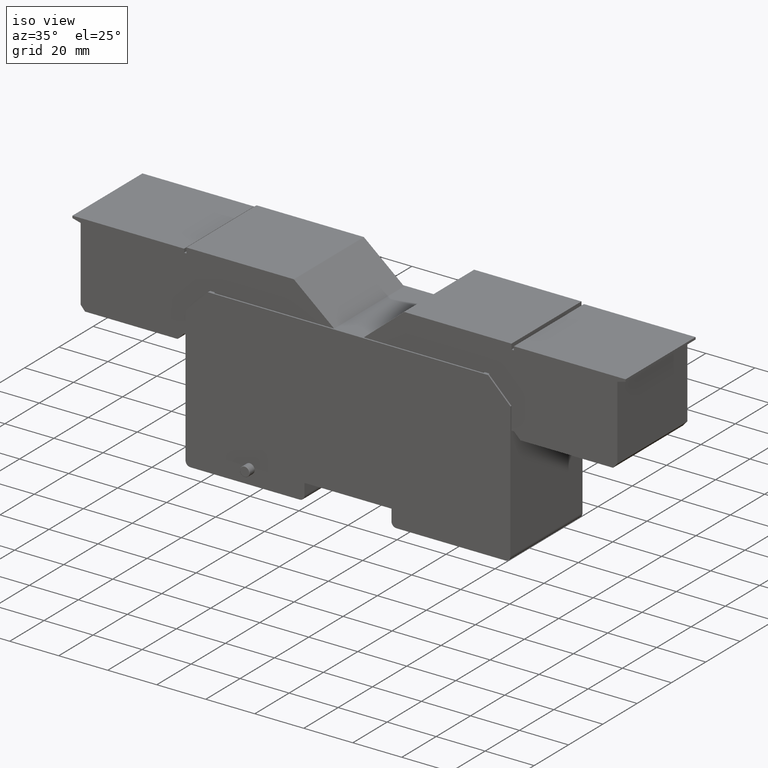
[diagram: clean part render]
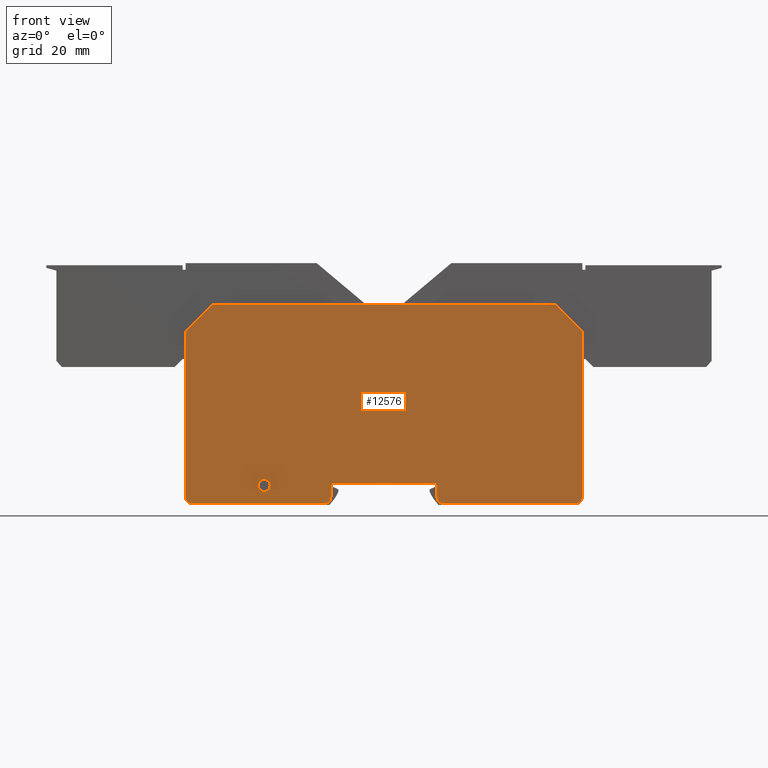
[diagram: tour spotlight — one face highlighted and labeled with its STEP entity id]
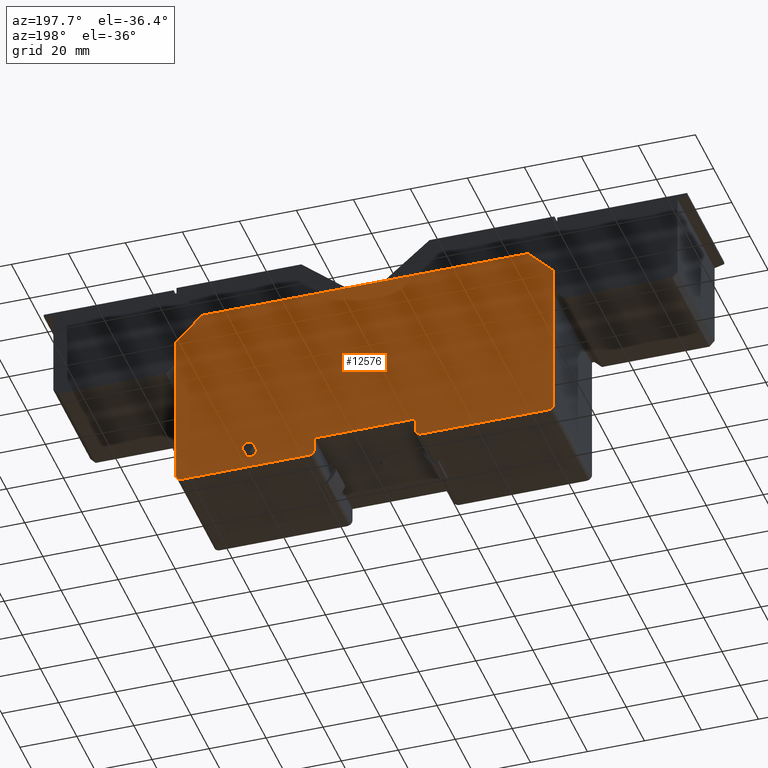
[diagram: tour spotlight — one face highlighted and labeled with its STEP entity id]
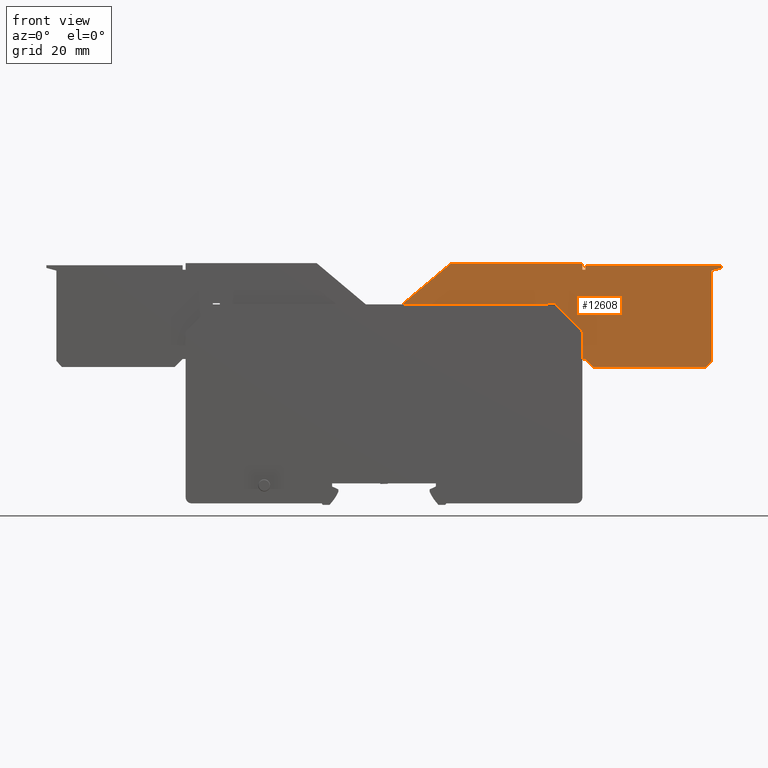
[diagram: tour spotlight — one face highlighted and labeled with its STEP entity id]
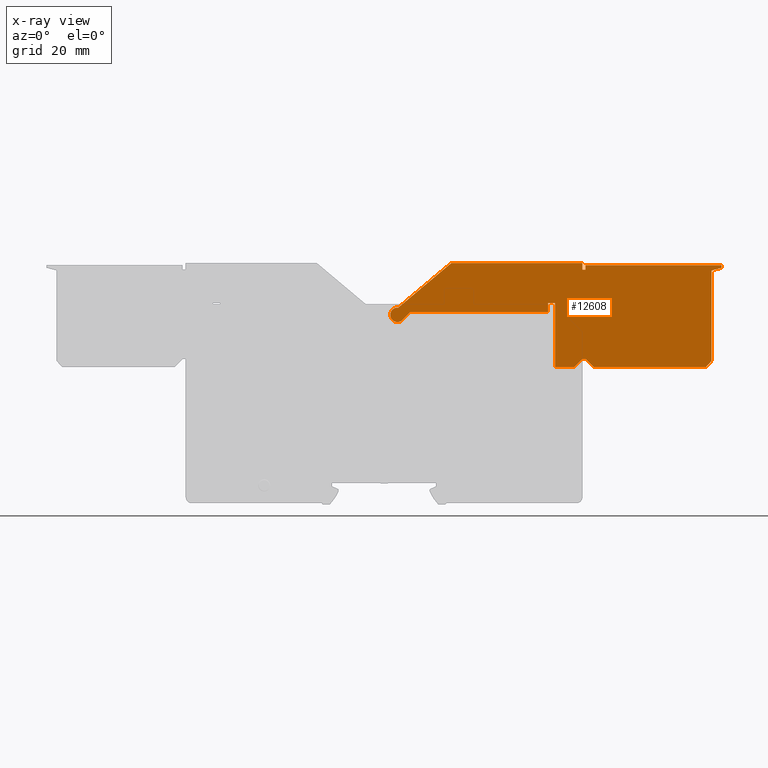
[diagram: x-ray of the same camera — body ghosted, this tour face saturated]
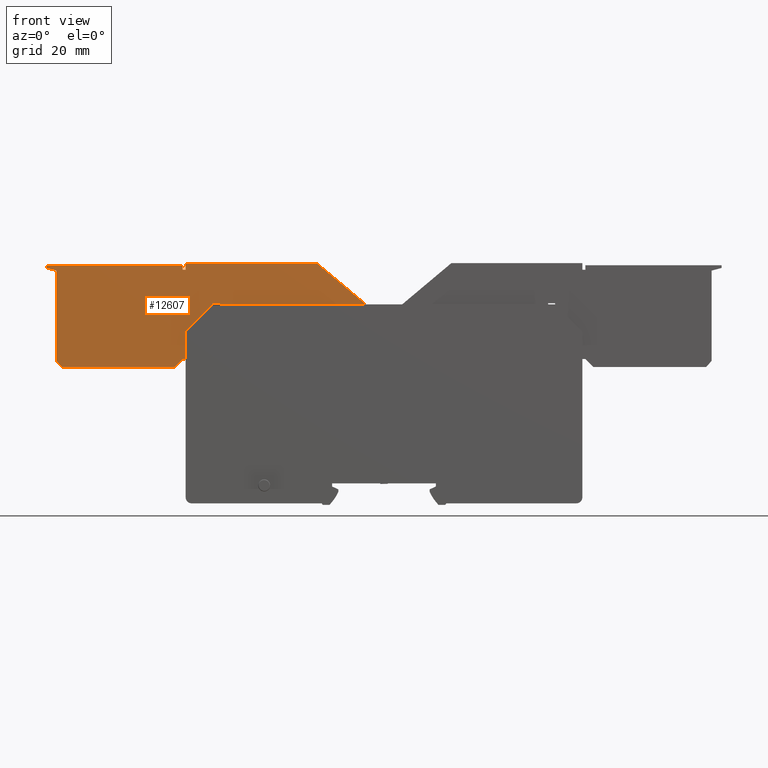
[diagram: tour spotlight — one face highlighted and labeled with its STEP entity id]
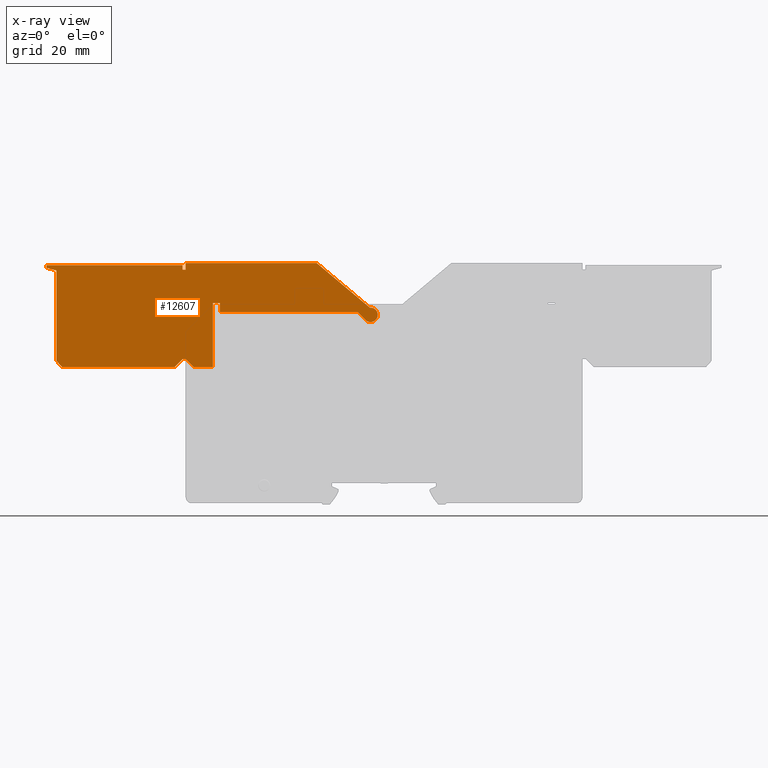
[diagram: x-ray of the same camera — body ghosted, this tour face saturated]
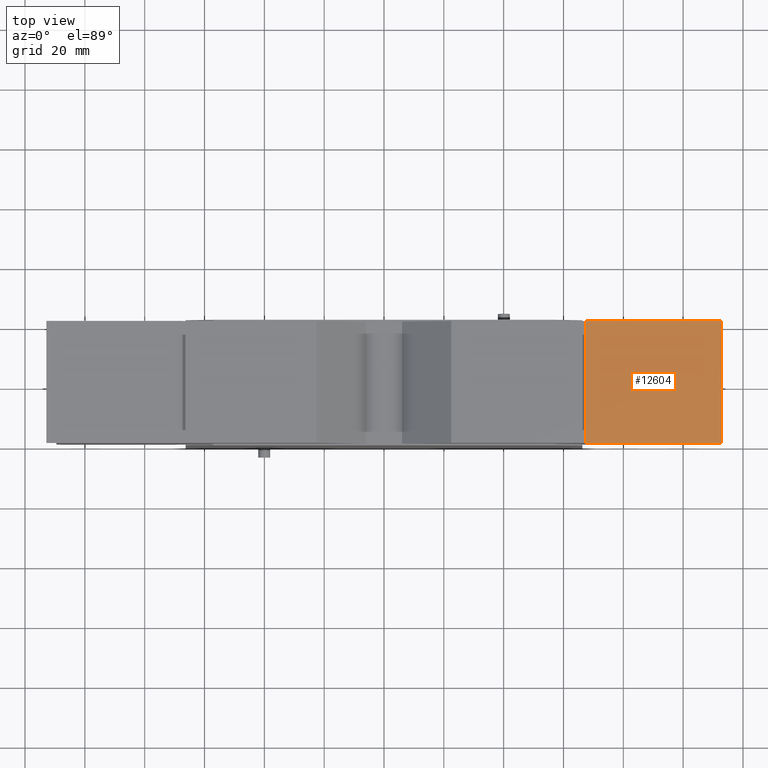
[diagram: tour spotlight — one face highlighted and labeled with its STEP entity id]
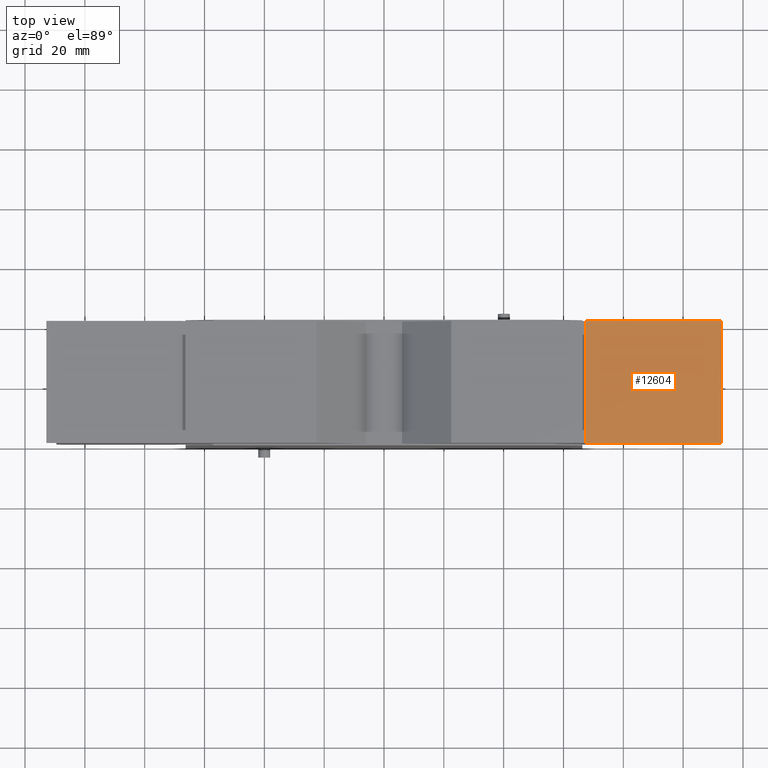
[diagram: tour spotlight — one face highlighted and labeled with its STEP entity id]
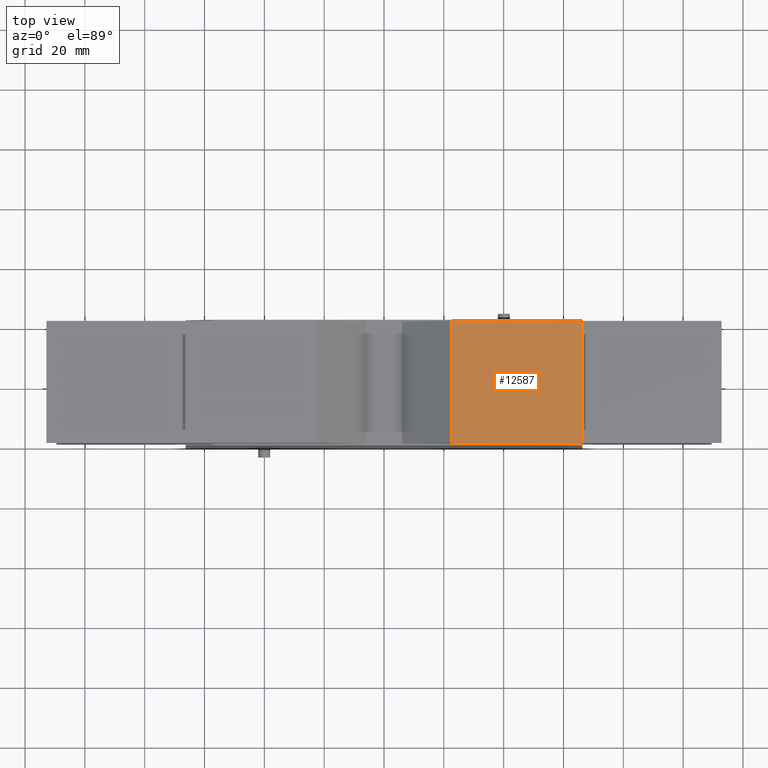
[diagram: tour spotlight — one face highlighted and labeled with its STEP entity id]
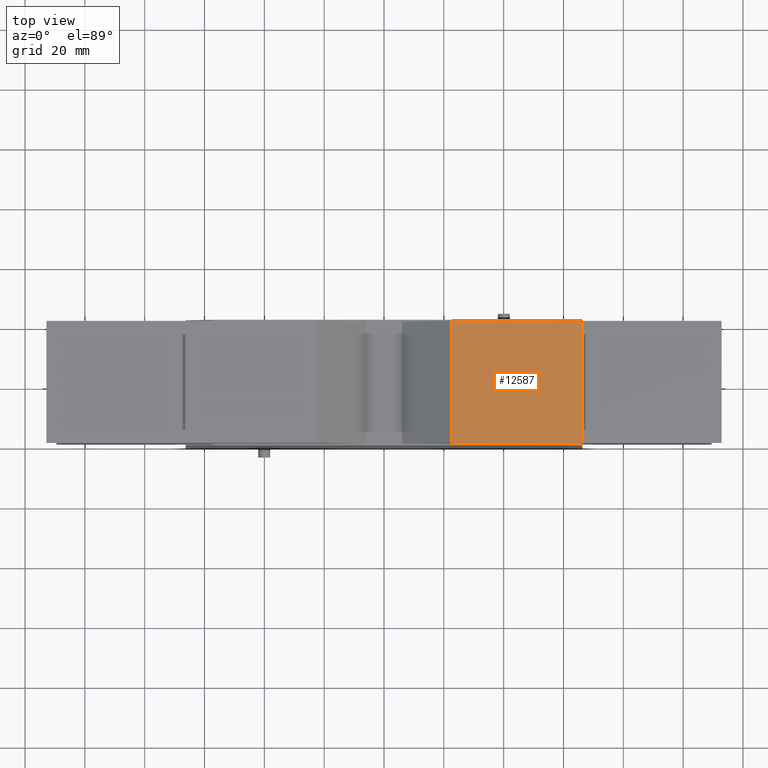
[diagram: tour spotlight — one face highlighted and labeled with its STEP entity id]
A machine part: a face-by-face anatomy tour. The part has 1136 B-rep faces; the first image is the clean iso view, then the 8 largest visible faces are spotlighted one at a time (largest first), each with its STEP entity span.

Face 1 — front view, entity #12576. In plain terms, the highlighted planar face has unit normal (0, -1, 0).
Definition (entity closure, byte-faithful):
#356=LINE('',#19168,#1648);
#360=LINE('',#19183,#1652);
#365=LINE('',#19201,#1657);
#394=LINE('',#19281,#1686);
#395=LINE('',#19283,#1687);
#403=LINE('',#19298,#1695);
#405=LINE('',#19302,#1697);
#407=LINE('',#19306,#1699);
#409=LINE('',#19310,#1701);
#411=LINE('',#19314,#1703);
#1648=VECTOR('',#15522,1000.);
#1652=VECTOR('',#15536,1000.);
#1657=VECTOR('',#15555,1000.);
#1686=VECTOR('',#15616,1000.);
#1687=VECTOR('',#15619,1000.);
#1695=VECTOR('',#15629,1000.);
#1697=VECTOR('',#15633,1000.);
#1699=VECTOR('',#15637,1000.);
#1701=VECTOR('',#15641,1000.);
#1703=VECTOR('',#15645,1000.);
#3447=ORIENTED_EDGE('',*,*,#6913,.T.);
#3448=ORIENTED_EDGE('',*,*,#6946,.T.);
#3449=ORIENTED_EDGE('',*,*,#6902,.T.);
#3450=ORIENTED_EDGE('',*,*,#6905,.T.);
#3451=ORIENTED_EDGE('',*,*,#6890,.T.);
#3452=ORIENTED_EDGE('',*,*,#6896,.T.);
#3453=ORIENTED_EDGE('',*,*,#6899,.T.);
#3454=ORIENTED_EDGE('',*,*,#6945,.T.);
#3455=ORIENTED_EDGE('',*,*,#6909,.T.);
#3456=ORIENTED_EDGE('',*,*,#6954,.T.);
#3457=ORIENTED_EDGE('',*,*,#6962,.T.);
#3458=ORIENTED_EDGE('',*,*,#6960,.T.);
#3459=ORIENTED_EDGE('',*,*,#6958,.T.);
#3460=ORIENTED_EDGE('',*,*,#6956,.T.);
#3461=ORIENTED_EDGE('',*,*,#6907,.F.);
#6890=EDGE_CURVE('',#8775,#8774,#356,.T.);
#6896=EDGE_CURVE('',#8774,#8780,#360,.T.);
#6899=EDGE_CURVE('',#8780,#8782,#10055,.T.);
#6902=EDGE_CURVE('',#8785,#8784,#10057,.T.);
#6905=EDGE_CURVE('',#8784,#8775,#365,.T.);
#6907=EDGE_CURVE('',#8787,#8787,#10059,.T.);
#6909=EDGE_CURVE('',#8790,#8789,#10060,.T.);
#6913=EDGE_CURVE('',#8794,#8793,#10062,.T.);
#6945=EDGE_CURVE('',#8782,#8790,#394,.T.);
#6946=EDGE_CURVE('',#8793,#8785,#395,.T.);
#6954=EDGE_CURVE('',#8789,#8828,#403,.T.);
#6956=EDGE_CURVE('',#8829,#8794,#405,.T.);
#6958=EDGE_CURVE('',#8830,#8829,#407,.T.);
#6960=EDGE_CURVE('',#8831,#8830,#409,.T.);
#6962=EDGE_CURVE('',#8828,#8831,#411,.T.);
#8774=VERTEX_POINT('',#19167);
#8775=VERTEX_POINT('',#19169);
#8780=VERTEX_POINT('',#19182);
#8782=VERTEX_POINT('',#19188);
#8784=VERTEX_POINT('',#19194);
#8785=VERTEX_POINT('',#19196);
#8787=VERTEX_POINT('',#19205);
#8789=VERTEX_POINT('',#19209);
#8790=VERTEX_POINT('',#19211);
#8793=VERTEX_POINT('',#19218);
#8794=VERTEX_POINT('',#19220);
#8828=VERTEX_POINT('',#19299);
#8829=VERTEX_POINT('',#19303);
#8830=VERTEX_POINT('',#19307);
#8831=VERTEX_POINT('',#19311);
#10055=CIRCLE('',#14337,2.);
#10057=CIRCLE('',#14340,2.);
#10059=CIRCLE('',#14344,2.);
#10060=CIRCLE('',#14346,2.);
#10062=CIRCLE('',#14349,2.);
#10501=EDGE_LOOP('',(#3447,#3448,#3449,#3450,#3451,#3452,#3453,#3454,#3455,
#3456,#3457,#3458,#3459,#3460));
#10502=EDGE_LOOP('',(#3461));
#11293=FACE_BOUND('',#10501,.T.);
#11294=FACE_BOUND('',#10502,.T.);
#12024=PLANE('',#14450);
#12576=ADVANCED_FACE('',(#11293,#11294),#12024,.T.);
#14337=AXIS2_PLACEMENT_3D('',#19189,#15541,#15542);
#14340=AXIS2_PLACEMENT_3D('',#19195,#15548,#15549);
#14344=AXIS2_PLACEMENT_3D('',#19204,#15559,#15560);
#14346=AXIS2_PLACEMENT_3D('',#19210,#15564,#15565);
#14349=AXIS2_PLACEMENT_3D('',#19219,#15572,#15573);
#14450=AXIS2_PLACEMENT_3D('',#19532,#15886,#15887);
#15522=DIRECTION('',(1.,0.,0.));
#15536=DIRECTION('',(1.47636040508663E-15,0.,-1.));
#15541=DIRECTION('',(0.,-1.,0.));
#15542=DIRECTION('',(1.,0.,0.));
#15548=DIRECTION('',(0.,-1.,0.));
#15549=DIRECTION('',(-1.,0.,0.));
#15555=DIRECTION('',(0.,0.,1.));
#15559=DIRECTION('',(0.,-1.,0.));
#15560=DIRECTION('',(0.,0.,-1.));
#15564=DIRECTION('',(0.,-1.,0.));
#15565=DIRECTION('',(0.,0.,-1.));
#15572=DIRECTION('',(0.,-1.,0.));
#15573=DIRECTION('',(0.,0.,-1.));
#15616=DIRECTION('',(1.,0.,-7.78775971257826E-17));
#15619=DIRECTION('',(1.,0.,-2.33632791377348E-16));
#15629=DIRECTION('',(5.01184102846303E-16,0.,1.));
#15633=DIRECTION('',(2.50592051423151E-16,0.,-1.));
#15637=DIRECTION('',(-0.7071067811866,0.,-0.707106781186495));
#15641=DIRECTION('',(-1.,0.,0.));
#15645=DIRECTION('',(-0.707106781186601,0.,0.707106781186495));
#15886=DIRECTION('',(0.,-1.,0.));
#15887=DIRECTION('',(0.,0.,-1.));
#19167=CARTESIAN_POINT('',(17.75,0.,-22.9900000000006));
#19168=CARTESIAN_POINT('',(-17.75,0.,-22.9900000000006));
#19169=CARTESIAN_POINT('',(-17.75,0.,-22.9900000000006));
#19182=CARTESIAN_POINT('',(17.75,0.,-27.6900000000007));
#19183=CARTESIAN_POINT('',(17.75,0.,-22.9900000000006));
#19188=CARTESIAN_POINT('',(19.75,0.,-29.6900000000007));
#19189=CARTESIAN_POINT('',(19.75,0.,-27.6900000000007));
#19194=CARTESIAN_POINT('',(-17.75,0.,-27.6900000000007));
#19195=CARTESIAN_POINT('',(-19.75,0.,-27.6900000000007));
#19196=CARTESIAN_POINT('',(-19.75,0.,-29.6900000000007));
#19201=CARTESIAN_POINT('',(-17.75,0.,-22.9900000000006));
#19204=CARTESIAN_POINT('',(-40.05,0.,-23.6900000000007));
#19205=CARTESIAN_POINT('',(-40.05,0.,-25.6900000000007));
#19209=CARTESIAN_POINT('',(66.3,0.,-27.6900000000007));
#19210=CARTESIAN_POINT('',(64.3,0.,-27.6900000000007));
#19211=CARTESIAN_POINT('',(64.3,0.,-29.6900000000007));
#19218=CARTESIAN_POINT('',(-64.3,0.,-29.6900000000007));
#19219=CARTESIAN_POINT('',(-64.3,0.,-27.6900000000007));
#19220=CARTESIAN_POINT('',(-66.3,0.,-27.6900000000007));
#19281=CARTESIAN_POINT('',(19.75,0.,-29.6900000000007));
#19283=CARTESIAN_POINT('',(-64.3,0.,-29.6900000000007));
#19298=CARTESIAN_POINT('',(66.3,0.,27.6900000000007));
#19299=CARTESIAN_POINT('',(66.3,0.,27.6900000000007));
#19302=CARTESIAN_POINT('',(-66.3,0.,-27.6900000000007));
#19303=CARTESIAN_POINT('',(-66.3,0.,27.6900000000007));
#19306=CARTESIAN_POINT('',(-57.1799999999999,0.,36.8099999999994));
#19307=CARTESIAN_POINT('',(-57.1799999999999,0.,36.8099999999994));
#19310=CARTESIAN_POINT('',(-57.18,0.,36.8099999999993));
#19311=CARTESIAN_POINT('',(57.18,0.,36.8099999999993));
#19314=CARTESIAN_POINT('',(66.3,0.,27.6900000000007));
#19532=CARTESIAN_POINT('',(-64.3,0.,-27.6900000000007));

Face 2 — auxiliary view, entity #12576. In plain terms, the highlighted planar face has unit normal (0, 1, 0).
Definition (entity closure, byte-faithful):
#356=LINE('',#19168,#1648);
#360=LINE('',#19183,#1652);
#365=LINE('',#19201,#1657);
#394=LINE('',#19281,#1686);
#395=LINE('',#19283,#1687);
#403=LINE('',#19298,#1695);
#405=LINE('',#19302,#1697);
#407=LINE('',#19306,#1699);
#409=LINE('',#19310,#1701);
#411=LINE('',#19314,#1703);
#1648=VECTOR('',#15522,1000.);
#1652=VECTOR('',#15536,1000.);
#1657=VECTOR('',#15555,1000.);
#1686=VECTOR('',#15616,1000.);
#1687=VECTOR('',#15619,1000.);
#1695=VECTOR('',#15629,1000.);
#1697=VECTOR('',#15633,1000.);
#1699=VECTOR('',#15637,1000.);
#1701=VECTOR('',#15641,1000.);
#1703=VECTOR('',#15645,1000.);
#3447=ORIENTED_EDGE('',*,*,#6913,.T.);
#3448=ORIENTED_EDGE('',*,*,#6946,.T.);
#3449=ORIENTED_EDGE('',*,*,#6902,.T.);
#3450=ORIENTED_EDGE('',*,*,#6905,.T.);
#3451=ORIENTED_EDGE('',*,*,#6890,.T.);
#3452=ORIENTED_EDGE('',*,*,#6896,.T.);
#3453=ORIENTED_EDGE('',*,*,#6899,.T.);
#3454=ORIENTED_EDGE('',*,*,#6945,.T.);
#3455=ORIENTED_EDGE('',*,*,#6909,.T.);
#3456=ORIENTED_EDGE('',*,*,#6954,.T.);
#3457=ORIENTED_EDGE('',*,*,#6962,.T.);
#3458=ORIENTED_EDGE('',*,*,#6960,.T.);
#3459=ORIENTED_EDGE('',*,*,#6958,.T.);
#3460=ORIENTED_EDGE('',*,*,#6956,.T.);
#3461=ORIENTED_EDGE('',*,*,#6907,.F.);
#6890=EDGE_CURVE('',#8775,#8774,#356,.T.);
#6896=EDGE_CURVE('',#8774,#8780,#360,.T.);
#6899=EDGE_CURVE('',#8780,#8782,#10055,.T.);
#6902=EDGE_CURVE('',#8785,#8784,#10057,.T.);
#6905=EDGE_CURVE('',#8784,#8775,#365,.T.);
#6907=EDGE_CURVE('',#8787,#8787,#10059,.T.);
#6909=EDGE_CURVE('',#8790,#8789,#10060,.T.);
#6913=EDGE_CURVE('',#8794,#8793,#10062,.T.);
#6945=EDGE_CURVE('',#8782,#8790,#394,.T.);
#6946=EDGE_CURVE('',#8793,#8785,#395,.T.);
#6954=EDGE_CURVE('',#8789,#8828,#403,.T.);
#6956=EDGE_CURVE('',#8829,#8794,#405,.T.);
#6958=EDGE_CURVE('',#8830,#8829,#407,.T.);
#6960=EDGE_CURVE('',#8831,#8830,#409,.T.);
#6962=EDGE_CURVE('',#8828,#8831,#411,.T.);
#8774=VERTEX_POINT('',#19167);
#8775=VERTEX_POINT('',#19169);
#8780=VERTEX_POINT('',#19182);
#8782=VERTEX_POINT('',#19188);
#8784=VERTEX_POINT('',#19194);
#8785=VERTEX_POINT('',#19196);
#8787=VERTEX_POINT('',#19205);
#8789=VERTEX_POINT('',#19209);
#8790=VERTEX_POINT('',#19211);
#8793=VERTEX_POINT('',#19218);
#8794=VERTEX_POINT('',#19220);
#8828=VERTEX_POINT('',#19299);
#8829=VERTEX_POINT('',#19303);
#8830=VERTEX_POINT('',#19307);
#8831=VERTEX_POINT('',#19311);
#10055=CIRCLE('',#14337,2.);
#10057=CIRCLE('',#14340,2.);
#10059=CIRCLE('',#14344,2.);
#10060=CIRCLE('',#14346,2.);
#10062=CIRCLE('',#14349,2.);
#10501=EDGE_LOOP('',(#3447,#3448,#3449,#3450,#3451,#3452,#3453,#3454,#3455,
#3456,#3457,#3458,#3459,#3460));
#10502=EDGE_LOOP('',(#3461));
#11293=FACE_BOUND('',#10501,.T.);
#11294=FACE_BOUND('',#10502,.T.);
#12024=PLANE('',#14450);
#12576=ADVANCED_FACE('',(#11293,#11294),#12024,.T.);
#14337=AXIS2_PLACEMENT_3D('',#19189,#15541,#15542);
#14340=AXIS2_PLACEMENT_3D('',#19195,#15548,#15549);
#14344=AXIS2_PLACEMENT_3D('',#19204,#15559,#15560);
#14346=AXIS2_PLACEMENT_3D('',#19210,#15564,#15565);
#14349=AXIS2_PLACEMENT_3D('',#19219,#15572,#15573);
#14450=AXIS2_PLACEMENT_3D('',#19532,#15886,#15887);
#15522=DIRECTION('',(1.,0.,0.));
#15536=DIRECTION('',(1.47636040508663E-15,0.,-1.));
#15541=DIRECTION('',(0.,-1.,0.));
#15542=DIRECTION('',(1.,0.,0.));
#15548=DIRECTION('',(0.,-1.,0.));
#15549=DIRECTION('',(-1.,0.,0.));
#15555=DIRECTION('',(0.,0.,1.));
#15559=DIRECTION('',(0.,-1.,0.));
#15560=DIRECTION('',(0.,0.,-1.));
#15564=DIRECTION('',(0.,-1.,0.));
#15565=DIRECTION('',(0.,0.,-1.));
#15572=DIRECTION('',(0.,-1.,0.));
#15573=DIRECTION('',(0.,0.,-1.));
#15616=DIRECTION('',(1.,0.,-7.78775971257826E-17));
#15619=DIRECTION('',(1.,0.,-2.33632791377348E-16));
#15629=DIRECTION('',(5.01184102846303E-16,0.,1.));
#15633=DIRECTION('',(2.50592051423151E-16,0.,-1.));
#15637=DIRECTION('',(-0.7071067811866,0.,-0.707106781186495));
#15641=DIRECTION('',(-1.,0.,0.));
#15645=DIRECTION('',(-0.707106781186601,0.,0.707106781186495));
#15886=DIRECTION('',(0.,-1.,0.));
#15887=DIRECTION('',(0.,0.,-1.));
#19167=CARTESIAN_POINT('',(17.75,0.,-22.9900000000006));
#19168=CARTESIAN_POINT('',(-17.75,0.,-22.9900000000006));
#19169=CARTESIAN_POINT('',(-17.75,0.,-22.9900000000006));
#19182=CARTESIAN_POINT('',(17.75,0.,-27.6900000000007));
#19183=CARTESIAN_POINT('',(17.75,0.,-22.9900000000006));
#19188=CARTESIAN_POINT('',(19.75,0.,-29.6900000000007));
#19189=CARTESIAN_POINT('',(19.75,0.,-27.6900000000007));
#19194=CARTESIAN_POINT('',(-17.75,0.,-27.6900000000007));
#19195=CARTESIAN_POINT('',(-19.75,0.,-27.6900000000007));
#19196=CARTESIAN_POINT('',(-19.75,0.,-29.6900000000007));
#19201=CARTESIAN_POINT('',(-17.75,0.,-22.9900000000006));
#19204=CARTESIAN_POINT('',(-40.05,0.,-23.6900000000007));
#19205=CARTESIAN_POINT('',(-40.05,0.,-25.6900000000007));
#19209=CARTESIAN_POINT('',(66.3,0.,-27.6900000000007));
#19210=CARTESIAN_POINT('',(64.3,0.,-27.6900000000007));
#19211=CARTESIAN_POINT('',(64.3,0.,-29.6900000000007));
#19218=CARTESIAN_POINT('',(-64.3,0.,-29.6900000000007));
#19219=CARTESIAN_POINT('',(-64.3,0.,-27.6900000000007));
#19220=CARTESIAN_POINT('',(-66.3,0.,-27.6900000000007));
#19281=CARTESIAN_POINT('',(19.75,0.,-29.6900000000007));
#19283=CARTESIAN_POINT('',(-64.3,0.,-29.6900000000007));
#19298=CARTESIAN_POINT('',(66.3,0.,27.6900000000007));
#19299=CARTESIAN_POINT('',(66.3,0.,27.6900000000007));
#19302=CARTESIAN_POINT('',(-66.3,0.,-27.6900000000007));
#19303=CARTESIAN_POINT('',(-66.3,0.,27.6900000000007));
#19306=CARTESIAN_POINT('',(-57.1799999999999,0.,36.8099999999994));
#19307=CARTESIAN_POINT('',(-57.1799999999999,0.,36.8099999999994));
#19310=CARTESIAN_POINT('',(-57.18,0.,36.8099999999993));
#19311=CARTESIAN_POINT('',(57.18,0.,36.8099999999993));
#19314=CARTESIAN_POINT('',(66.3,0.,27.6900000000007));
#19532=CARTESIAN_POINT('',(-64.3,0.,-27.6900000000007));

Face 3 — front view, entity #12608. An x-ray twin of the same camera follows (body ghosted, this face saturated) — the face is partly hidden behind the body. In plain terms, the highlighted planar face has unit normal (-0, -1, 0).
Definition (entity closure, byte-faithful):
#482=LINE('',#19556,#1774);
#486=LINE('',#19565,#1778);
#489=LINE('',#19571,#1781);
#493=LINE('',#19583,#1785);
#496=LINE('',#19589,#1788);
#499=LINE('',#19595,#1791);
#502=LINE('',#19601,#1794);
#505=LINE('',#19607,#1797);
#508=LINE('',#19613,#1800);
#511=LINE('',#19619,#1803);
#514=LINE('',#19625,#1806);
#517=LINE('',#19631,#1809);
#520=LINE('',#19637,#1812);
#523=LINE('',#19643,#1815);
#526=LINE('',#19649,#1818);
#529=LINE('',#19655,#1821);
#532=LINE('',#19661,#1824);
#535=LINE('',#19667,#1827);
#538=LINE('',#19673,#1830);
#541=LINE('',#19679,#1833);
#1774=VECTOR('',#15922,1000.);
#1778=VECTOR('',#15928,1000.);
#1781=VECTOR('',#15933,1000.);
#1785=VECTOR('',#15945,1000.);
#1788=VECTOR('',#15950,1000.);
#1791=VECTOR('',#15955,1000.);
#1794=VECTOR('',#15960,1000.);
#1797=VECTOR('',#15965,1000.);
#1800=VECTOR('',#15970,1000.);
#1803=VECTOR('',#15975,1000.);
#1806=VECTOR('',#15980,1000.);
#1809=VECTOR('',#15985,1000.);
#1812=VECTOR('',#15990,1000.);
#1815=VECTOR('',#15995,1000.);
#1818=VECTOR('',#16000,1000.);
#1821=VECTOR('',#16005,1000.);
#1824=VECTOR('',#16010,1000.);
#1827=VECTOR('',#16015,1000.);
#1830=VECTOR('',#16020,1000.);
#1833=VECTOR('',#16025,1000.);
#3579=ORIENTED_EDGE('',*,*,#7063,.T.);
#3580=ORIENTED_EDGE('',*,*,#7067,.T.);
#3581=ORIENTED_EDGE('',*,*,#7070,.T.);
#3582=ORIENTED_EDGE('',*,*,#7073,.T.);
#3583=ORIENTED_EDGE('',*,*,#7076,.T.);
#3584=ORIENTED_EDGE('',*,*,#7079,.T.);
#3585=ORIENTED_EDGE('',*,*,#7082,.T.);
#3586=ORIENTED_EDGE('',*,*,#7085,.T.);
#3587=ORIENTED_EDGE('',*,*,#7088,.T.);
#3588=ORIENTED_EDGE('',*,*,#7091,.T.);
#3589=ORIENTED_EDGE('',*,*,#7094,.T.);
#3590=ORIENTED_EDGE('',*,*,#7097,.T.);
#3591=ORIENTED_EDGE('',*,*,#7100,.T.);
#3592=ORIENTED_EDGE('',*,*,#7103,.T.);
#3593=ORIENTED_EDGE('',*,*,#7106,.T.);
#3594=ORIENTED_EDGE('',*,*,#7109,.T.);
#3595=ORIENTED_EDGE('',*,*,#7112,.T.);
#3596=ORIENTED_EDGE('',*,*,#7115,.T.);
#3597=ORIENTED_EDGE('',*,*,#7118,.T.);
#3598=ORIENTED_EDGE('',*,*,#7121,.T.);
#3599=ORIENTED_EDGE('',*,*,#7124,.T.);
#7063=EDGE_CURVE('',#8900,#8901,#482,.T.);
#7067=EDGE_CURVE('',#8901,#8904,#486,.T.);
#7070=EDGE_CURVE('',#8904,#8906,#489,.T.);
#7073=EDGE_CURVE('',#8906,#8908,#10100,.T.);
#7076=EDGE_CURVE('',#8908,#8910,#493,.T.);
#7079=EDGE_CURVE('',#8910,#8912,#496,.T.);
#7082=EDGE_CURVE('',#8912,#8914,#499,.T.);
#7085=EDGE_CURVE('',#8914,#8916,#502,.T.);
#7088=EDGE_CURVE('',#8916,#8918,#505,.T.);
#7091=EDGE_CURVE('',#8918,#8920,#508,.T.);
#7094=EDGE_CURVE('',#8920,#8922,#511,.T.);
#7097=EDGE_CURVE('',#8922,#8924,#514,.T.);
#7100=EDGE_CURVE('',#8924,#8926,#517,.T.);
#7103=EDGE_CURVE('',#8926,#8928,#520,.T.);
#7106=EDGE_CURVE('',#8928,#8930,#523,.T.);
#7109=EDGE_CURVE('',#8930,#8932,#526,.T.);
#7112=EDGE_CURVE('',#8932,#8934,#529,.T.);
#7115=EDGE_CURVE('',#8934,#8936,#532,.T.);
#7118=EDGE_CURVE('',#8936,#8938,#535,.T.);
#7121=EDGE_CURVE('',#8938,#8940,#538,.T.);
#7124=EDGE_CURVE('',#8940,#8900,#541,.T.);
#8900=VERTEX_POINT('',#19557);
#8901=VERTEX_POINT('',#19558);
#8904=VERTEX_POINT('',#19566);
#8906=VERTEX_POINT('',#19572);
#8908=VERTEX_POINT('',#19578);
#8910=VERTEX_POINT('',#19584);
#8912=VERTEX_POINT('',#19590);
#8914=VERTEX_POINT('',#19596);
#8916=VERTEX_POINT('',#19602);
#8918=VERTEX_POINT('',#19608);
#8920=VERTEX_POINT('',#19614);
#8922=VERTEX_POINT('',#19620);
#8924=VERTEX_POINT('',#19626);
#8926=VERTEX_POINT('',#19632);
#8928=VERTEX_POINT('',#19638);
#8930=VERTEX_POINT('',#19644);
#8932=VERTEX_POINT('',#19650);
#8934=VERTEX_POINT('',#19656);
#8936=VERTEX_POINT('',#19662);
#8938=VERTEX_POINT('',#19668);
#8940=VERTEX_POINT('',#19674);
#10100=CIRCLE('',#14471,2.41911089923885);
#10537=EDGE_LOOP('',(#3579,#3580,#3581,#3582,#3583,#3584,#3585,#3586,#3587,
#3588,#3589,#3590,#3591,#3592,#3593,#3594,#3595,#3596,#3597,#3598,#3599));
#11329=FACE_BOUND('',#10537,.T.);
#12052=PLANE('',#14491);
#12608=ADVANCED_FACE('',(#11329),#12052,.T.);
#14471=AXIS2_PLACEMENT_3D('',#19577,#15938,#15939);
#14491=AXIS2_PLACEMENT_3D('',#19682,#16029,#16030);
#15922=DIRECTION('',(0.,0.,1.));
#15928=DIRECTION('',(-1.,0.,-1.5842672720808E-16));
#15933=DIRECTION('',(-0.766044443118978,0.,-0.642787609686539));
#15938=DIRECTION('',(0.,-1.,0.));
#15939=DIRECTION('',(1.,0.,0.));
#15945=DIRECTION('',(0.696896255024751,0.,0.717171952695082));
#15950=DIRECTION('',(1.,0.,-1.5050925495941E-16));
#15955=DIRECTION('',(0.,0.,1.));
#15960=DIRECTION('',(1.,0.,0.));
#15965=DIRECTION('',(0.,0.,-1.));
#15970=DIRECTION('',(1.,0.,0.));
#15975=DIRECTION('',(0.709099554956058,0.,0.705108375472254));
#15980=DIRECTION('',(1.,0.,0.));
#15985=DIRECTION('',(0.709099554956058,0.,-0.705108375472254));
#15990=DIRECTION('',(1.,0.,1.838117590439E-16));
#15995=DIRECTION('',(0.662620048215736,0.,0.748955720789004));
#16000=DIRECTION('',(0.,0.,1.));
#16005=DIRECTION('',(0.965925826289068,0.,0.25881904510252));
#16010=DIRECTION('',(0.,0.,1.));
#16015=DIRECTION('',(-1.,0.,0.));
#16020=DIRECTION('',(0.,0.,-1.));
#16025=DIRECTION('',(-1.,0.,0.));
#16029=DIRECTION('',(0.,-1.,0.));
#16030=DIRECTION('',(0.,0.,-1.));
#19556=CARTESIAN_POINT('',(66.3000000000011,0.6,48.4099999999993));
#19557=CARTESIAN_POINT('',(66.3000000000011,0.6,48.4099999999993));
#19558=CARTESIAN_POINT('',(66.3000000000011,0.6,50.6099999999993));
#19565=CARTESIAN_POINT('',(66.3000000000011,0.6,50.6099999999993));
#19566=CARTESIAN_POINT('',(22.5012418851939,0.6,50.6099999999993));
#19571=CARTESIAN_POINT('',(4.75124188519389,0.6,35.7159815466026));
#19572=CARTESIAN_POINT('',(4.75124188519389,0.6,35.7159815466026));
#19577=CARTESIAN_POINT('',(4.49954695035296,0.6,33.3100000000001));
#19578=CARTESIAN_POINT('',(6.23446543774604,0.6,31.624130673831));
#19583=CARTESIAN_POINT('',(6.23446543774604,0.6,31.624130673831));
#19584=CARTESIAN_POINT('',(8.74722774337997,0.6,34.2099999999993));
#19589=CARTESIAN_POINT('',(8.74722774337997,0.6,34.2099999999993));
#19590=CARTESIAN_POINT('',(54.85,0.6,34.2099999999993));
#19595=CARTESIAN_POINT('',(54.85,0.6,34.2099999999993));
#19596=CARTESIAN_POINT('',(54.85,0.6,37.2099999999993));
#19601=CARTESIAN_POINT('',(54.85,0.6,37.2099999999993));
#19602=CARTESIAN_POINT('',(57.2,0.6,37.2099999999993));
#19607=CARTESIAN_POINT('',(57.2,0.6,37.2099999999993));
#19608=CARTESIAN_POINT('',(57.2,0.6,15.9099999999993));
#19613=CARTESIAN_POINT('',(57.2,0.6,15.9099999999993));
#19614=CARTESIAN_POINT('',(63.635,0.6,15.9099999999993));
#19619=CARTESIAN_POINT('',(63.635,0.6,15.9099999999993));
#19620=CARTESIAN_POINT('',(66.3,0.6,18.5599999999993));
#19625=CARTESIAN_POINT('',(67.3,0.6,18.5599999999993));
#19626=CARTESIAN_POINT('',(67.3,0.6,18.5599999999993));
#19631=CARTESIAN_POINT('',(67.3,0.6,18.5599999999993));
#19632=CARTESIAN_POINT('',(69.965,0.6,15.9099999999993));
#19637=CARTESIAN_POINT('',(69.965,0.6,15.9099999999993));
#19638=CARTESIAN_POINT('',(107.715,0.6,15.9099999999993));
#19643=CARTESIAN_POINT('',(107.715,0.6,15.9099999999993));
#19644=CARTESIAN_POINT('',(109.5,0.6,17.9275754796551));
#19649=CARTESIAN_POINT('',(109.5,0.6,17.9275754796551));
#19650=CARTESIAN_POINT('',(109.5,0.6,48.1099999999993));
#19655=CARTESIAN_POINT('',(109.5,0.6,48.1099999999993));
#19656=CARTESIAN_POINT('',(112.858845726812,0.6,49.0099999999993));
#19661=CARTESIAN_POINT('',(112.858845726812,0.6,49.0099999999993));
#19662=CARTESIAN_POINT('',(112.858845726812,0.6,49.9099999999993));
#19667=CARTESIAN_POINT('',(112.858845726812,0.6,49.9099999999993));
#19668=CARTESIAN_POINT('',(67.3,0.6,49.9099999999993));
#19673=CARTESIAN_POINT('',(67.3,0.6,49.9099999999993));
#19674=CARTESIAN_POINT('',(67.3,0.6,48.4099999999993));
#19679=CARTESIAN_POINT('',(67.3,0.6,48.4099999999993));
#19682=CARTESIAN_POINT('',(4.49954695035296,0.6,33.3100000000001));

Face 4 — front view, entity #12607. An x-ray twin of the same camera follows (body ghosted, this face saturated) — the face is partly hidden behind the body. In plain terms, the highlighted planar face has unit normal (-0, 1, -0).
Definition (entity closure, byte-faithful):
#484=LINE('',#19561,#1776);
#487=LINE('',#19567,#1779);
#490=LINE('',#19573,#1782);
#494=LINE('',#19585,#1786);
#497=LINE('',#19591,#1789);
#500=LINE('',#19597,#1792);
#503=LINE('',#19603,#1795);
#506=LINE('',#19609,#1798);
#509=LINE('',#19615,#1801);
#512=LINE('',#19621,#1804);
#515=LINE('',#19627,#1807);
#518=LINE('',#19633,#1810);
#521=LINE('',#19639,#1813);
#524=LINE('',#19645,#1816);
#527=LINE('',#19651,#1819);
#530=LINE('',#19657,#1822);
#533=LINE('',#19663,#1825);
#536=LINE('',#19669,#1828);
#539=LINE('',#19675,#1831);
#542=LINE('',#19680,#1834);
#1776=VECTOR('',#15924,1000.);
#1779=VECTOR('',#15929,1000.);
#1782=VECTOR('',#15934,1000.);
#1786=VECTOR('',#15946,1000.);
#1789=VECTOR('',#15951,1000.);
#1792=VECTOR('',#15956,1000.);
#1795=VECTOR('',#15961,1000.);
#1798=VECTOR('',#15966,1000.);
#1801=VECTOR('',#15971,1000.);
#1804=VECTOR('',#15976,1000.);
#1807=VECTOR('',#15981,1000.);
#1810=VECTOR('',#15986,1000.);
#1813=VECTOR('',#15991,1000.);
#1816=VECTOR('',#15996,1000.);
#1819=VECTOR('',#16001,1000.);
#1822=VECTOR('',#16006,1000.);
#1825=VECTOR('',#16011,1000.);
#1828=VECTOR('',#16016,1000.);
#1831=VECTOR('',#16021,1000.);
#1834=VECTOR('',#16026,1000.);
#3558=ORIENTED_EDGE('',*,*,#7065,.F.);
#3559=ORIENTED_EDGE('',*,*,#7125,.F.);
#3560=ORIENTED_EDGE('',*,*,#7122,.F.);
#3561=ORIENTED_EDGE('',*,*,#7119,.F.);
#3562=ORIENTED_EDGE('',*,*,#7116,.F.);
#3563=ORIENTED_EDGE('',*,*,#7113,.F.);
#3564=ORIENTED_EDGE('',*,*,#7110,.F.);
#3565=ORIENTED_EDGE('',*,*,#7107,.F.);
#3566=ORIENTED_EDGE('',*,*,#7104,.F.);
#3567=ORIENTED_EDGE('',*,*,#7101,.F.);
#3568=ORIENTED_EDGE('',*,*,#7098,.F.);
#3569=ORIENTED_EDGE('',*,*,#7095,.F.);
#3570=ORIENTED_EDGE('',*,*,#7092,.F.);
#3571=ORIENTED_EDGE('',*,*,#7089,.F.);
#3572=ORIENTED_EDGE('',*,*,#7086,.F.);
#3573=ORIENTED_EDGE('',*,*,#7083,.F.);
#3574=ORIENTED_EDGE('',*,*,#7080,.F.);
#3575=ORIENTED_EDGE('',*,*,#7077,.F.);
#3576=ORIENTED_EDGE('',*,*,#7074,.F.);
#3577=ORIENTED_EDGE('',*,*,#7071,.F.);
#3578=ORIENTED_EDGE('',*,*,#7068,.F.);
#7065=EDGE_CURVE('',#8902,#8903,#484,.T.);
#7068=EDGE_CURVE('',#8903,#8905,#487,.T.);
#7071=EDGE_CURVE('',#8905,#8907,#490,.T.);
#7074=EDGE_CURVE('',#8907,#8909,#10101,.T.);
#7077=EDGE_CURVE('',#8909,#8911,#494,.T.);
#7080=EDGE_CURVE('',#8911,#8913,#497,.T.);
#7083=EDGE_CURVE('',#8913,#8915,#500,.T.);
#7086=EDGE_CURVE('',#8915,#8917,#503,.T.);
#7089=EDGE_CURVE('',#8917,#8919,#506,.T.);
#7092=EDGE_CURVE('',#8919,#8921,#509,.T.);
#7095=EDGE_CURVE('',#8921,#8923,#512,.T.);
#7098=EDGE_CURVE('',#8923,#8925,#515,.T.);
#7101=EDGE_CURVE('',#8925,#8927,#518,.T.);
#7104=EDGE_CURVE('',#8927,#8929,#521,.T.);
#7107=EDGE_CURVE('',#8929,#8931,#524,.T.);
#7110=EDGE_CURVE('',#8931,#8933,#527,.T.);
#7113=EDGE_CURVE('',#8933,#8935,#530,.T.);
#7116=EDGE_CURVE('',#8935,#8937,#533,.T.);
#7119=EDGE_CURVE('',#8937,#8939,#536,.T.);
#7122=EDGE_CURVE('',#8939,#8941,#539,.T.);
#7125=EDGE_CURVE('',#8941,#8902,#542,.T.);
#8902=VERTEX_POINT('',#19560);
#8903=VERTEX_POINT('',#19562);
#8905=VERTEX_POINT('',#19568);
#8907=VERTEX_POINT('',#19574);
#8909=VERTEX_POINT('',#19580);
#8911=VERTEX_POINT('',#19586);
#8913=VERTEX_POINT('',#19592);
#8915=VERTEX_POINT('',#19598);
#8917=VERTEX_POINT('',#19604);
#8919=VERTEX_POINT('',#19610);
#8921=VERTEX_POINT('',#19616);
#8923=VERTEX_POINT('',#19622);
#8925=VERTEX_POINT('',#19628);
#8927=VERTEX_POINT('',#19634);
#8929=VERTEX_POINT('',#19640);
#8931=VERTEX_POINT('',#19646);
#8933=VERTEX_POINT('',#19652);
#8935=VERTEX_POINT('',#19658);
#8937=VERTEX_POINT('',#19664);
#8939=VERTEX_POINT('',#19670);
#8941=VERTEX_POINT('',#19676);
#10101=CIRCLE('',#14472,2.41911089923885);
#10536=EDGE_LOOP('',(#3558,#3559,#3560,#3561,#3562,#3563,#3564,#3565,#3566,
#3567,#3568,#3569,#3570,#3571,#3572,#3573,#3574,#3575,#3576,#3577,#3578));
#11328=FACE_BOUND('',#10536,.T.);
#12051=PLANE('',#14490);
#12607=ADVANCED_FACE('',(#11328),#12051,.F.);
#14472=AXIS2_PLACEMENT_3D('',#19579,#15940,#15941);
#14490=AXIS2_PLACEMENT_3D('',#19681,#16027,#16028);
#15924=DIRECTION('',(0.,0.,1.));
#15929=DIRECTION('',(-1.,0.,-1.5842672720808E-16));
#15934=DIRECTION('',(-0.766044443118978,0.,-0.642787609686539));
#15940=DIRECTION('',(0.,-1.,0.));
#15941=DIRECTION('',(1.,0.,0.));
#15946=DIRECTION('',(0.696896255024751,0.,0.717171952695082));
#15951=DIRECTION('',(1.,0.,-1.5050925495941E-16));
#15956=DIRECTION('',(0.,0.,1.));
#15961=DIRECTION('',(1.,0.,0.));
#15966=DIRECTION('',(0.,0.,-1.));
#15971=DIRECTION('',(1.,0.,0.));
#15976=DIRECTION('',(0.709099554956058,0.,0.705108375472254));
#15981=DIRECTION('',(1.,0.,0.));
#15986=DIRECTION('',(0.709099554956058,0.,-0.705108375472254));
#15991=DIRECTION('',(1.,0.,1.838117590439E-16));
#15996=DIRECTION('',(0.662620048215736,0.,0.748955720789004));
#16001=DIRECTION('',(0.,0.,1.));
#16006=DIRECTION('',(0.965925826289068,0.,0.25881904510252));
#16011=DIRECTION('',(0.,0.,1.));
#16016=DIRECTION('',(-1.,0.,0.));
#16021=DIRECTION('',(0.,0.,-1.));
#16026=DIRECTION('',(-1.,0.,0.));
#16027=DIRECTION('',(0.,-1.,0.));
#16028=DIRECTION('',(0.,0.,-1.));
#19560=CARTESIAN_POINT('',(66.3000000000011,41.4,48.4099999999993));
#19561=CARTESIAN_POINT('',(66.3000000000011,41.4,48.4099999999993));
#19562=CARTESIAN_POINT('',(66.3000000000011,41.4,50.6099999999993));
#19567=CARTESIAN_POINT('',(66.3000000000011,41.4,50.6099999999993));
#19568=CARTESIAN_POINT('',(22.5012418851939,41.4,50.6099999999993));
#19573=CARTESIAN_POINT('',(4.75124188519389,41.4,35.7159815466026));
#19574=CARTESIAN_POINT('',(4.75124188519389,41.4,35.7159815466026));
#19579=CARTESIAN_POINT('',(4.49954695035296,41.4,33.3100000000001));
#19580=CARTESIAN_POINT('',(6.23446543774604,41.4,31.624130673831));
#19585=CARTESIAN_POINT('',(6.23446543774604,41.4,31.624130673831));
#19586=CARTESIAN_POINT('',(8.74722774337997,41.4,34.2099999999993));
#19591=CARTESIAN_POINT('',(8.74722774337997,41.4,34.2099999999993));
#19592=CARTESIAN_POINT('',(54.85,41.4,34.2099999999993));
#19597=CARTESIAN_POINT('',(54.85,41.4,34.2099999999993));
#19598=CARTESIAN_POINT('',(54.85,41.4,37.2099999999993));
#19603=CARTESIAN_POINT('',(54.85,41.4,37.2099999999993));
#19604=CARTESIAN_POINT('',(57.2,41.4,37.2099999999993));
#19609=CARTESIAN_POINT('',(57.2,41.4,37.2099999999993));
#19610=CARTESIAN_POINT('',(57.2,41.4,15.9099999999993));
#19615=CARTESIAN_POINT('',(57.2,41.4,15.9099999999993));
#19616=CARTESIAN_POINT('',(63.635,41.4,15.9099999999993));
#19621=CARTESIAN_POINT('',(63.635,41.4,15.9099999999993));
#19622=CARTESIAN_POINT('',(66.3,41.4,18.5599999999993));
#19627=CARTESIAN_POINT('',(67.3,41.4,18.5599999999993));
#19628=CARTESIAN_POINT('',(67.3,41.4,18.5599999999993));
#19633=CARTESIAN_POINT('',(67.3,41.4,18.5599999999993));
#19634=CARTESIAN_POINT('',(69.965,41.4,15.9099999999993));
#19639=CARTESIAN_POINT('',(69.965,41.4,15.9099999999993));
#19640=CARTESIAN_POINT('',(107.715,41.4,15.9099999999993));
#19645=CARTESIAN_POINT('',(107.715,41.4,15.9099999999993));
#19646=CARTESIAN_POINT('',(109.5,41.4,17.9275754796551));
#19651=CARTESIAN_POINT('',(109.5,41.4,17.9275754796551));
#19652=CARTESIAN_POINT('',(109.5,41.4,48.1099999999993));
#19657=CARTESIAN_POINT('',(109.5,41.4,48.1099999999993));
#19658=CARTESIAN_POINT('',(112.858845726812,41.4,49.0099999999993));
#19663=CARTESIAN_POINT('',(112.858845726812,41.4,49.0099999999993));
#19664=CARTESIAN_POINT('',(112.858845726812,41.4,49.9099999999993));
#19669=CARTESIAN_POINT('',(112.858845726812,41.4,49.9099999999993));
#19670=CARTESIAN_POINT('',(67.3,41.4,49.9099999999993));
#19675=CARTESIAN_POINT('',(67.3,41.4,49.9099999999993));
#19676=CARTESIAN_POINT('',(67.3,41.4,48.4099999999993));
#19680=CARTESIAN_POINT('',(67.3,41.4,48.4099999999993));
#19681=CARTESIAN_POINT('',(4.49954695035296,41.4,33.3100000000001));

Face 5 — top view, entity #12604. In plain terms, the highlighted planar face has unit normal (-0, 0, 1).
Definition (entity closure, byte-faithful):
#534=LINE('',#19665,#1826);
#535=LINE('',#19667,#1827);
#536=LINE('',#19669,#1828);
#537=LINE('',#19671,#1829);
#1826=VECTOR('',#16012,1000.);
#1827=VECTOR('',#16015,1000.);
#1828=VECTOR('',#16016,1000.);
#1829=VECTOR('',#16017,1000.);
#3546=ORIENTED_EDGE('',*,*,#7118,.F.);
#3547=ORIENTED_EDGE('',*,*,#7117,.F.);
#3548=ORIENTED_EDGE('',*,*,#7119,.T.);
#3549=ORIENTED_EDGE('',*,*,#7120,.T.);
#7117=EDGE_CURVE('',#8937,#8936,#534,.T.);
#7118=EDGE_CURVE('',#8936,#8938,#535,.T.);
#7119=EDGE_CURVE('',#8937,#8939,#536,.T.);
#7120=EDGE_CURVE('',#8939,#8938,#537,.T.);
#8936=VERTEX_POINT('',#19662);
#8937=VERTEX_POINT('',#19664);
#8938=VERTEX_POINT('',#19668);
#8939=VERTEX_POINT('',#19670);
#10533=EDGE_LOOP('',(#3546,#3547,#3548,#3549));
#11325=FACE_BOUND('',#10533,.T.);
#12048=PLANE('',#14487);
#12604=ADVANCED_FACE('',(#11325),#12048,.T.);
#14487=AXIS2_PLACEMENT_3D('',#19666,#16013,#16014);
#16012=DIRECTION('',(0.,-1.,0.));
#16013=DIRECTION('',(0.,0.,1.));
#16014=DIRECTION('',(1.,0.,0.));
#16015=DIRECTION('',(-1.,0.,0.));
#16016=DIRECTION('',(-1.,0.,0.));
#16017=DIRECTION('',(0.,-1.,0.));
#19662=CARTESIAN_POINT('',(112.858845726812,0.6,49.9099999999993));
#19664=CARTESIAN_POINT('',(112.858845726812,41.4,49.9099999999993));
#19665=CARTESIAN_POINT('',(112.858845726812,41.4,49.9099999999993));
#19666=CARTESIAN_POINT('',(112.858845726812,41.4,49.9099999999993));
#19667=CARTESIAN_POINT('',(112.858845726812,0.6,49.9099999999993));
#19668=CARTESIAN_POINT('',(67.3,0.6,49.9099999999993));
#19669=CARTESIAN_POINT('',(112.858845726812,41.4,49.9099999999993));
#19670=CARTESIAN_POINT('',(67.3,41.4,49.9099999999993));
#19671=CARTESIAN_POINT('',(67.3,41.4,49.9099999999993));

Face 6 — top view, entity #12604. In plain terms, the highlighted planar face has unit normal (-0, 0, 1).
Definition (entity closure, byte-faithful):
#534=LINE('',#19665,#1826);
#535=LINE('',#19667,#1827);
#536=LINE('',#19669,#1828);
#537=LINE('',#19671,#1829);
#1826=VECTOR('',#16012,1000.);
#1827=VECTOR('',#16015,1000.);
#1828=VECTOR('',#16016,1000.);
#1829=VECTOR('',#16017,1000.);
#3546=ORIENTED_EDGE('',*,*,#7118,.F.);
#3547=ORIENTED_EDGE('',*,*,#7117,.F.);
#3548=ORIENTED_EDGE('',*,*,#7119,.T.);
#3549=ORIENTED_EDGE('',*,*,#7120,.T.);
#7117=EDGE_CURVE('',#8937,#8936,#534,.T.);
#7118=EDGE_CURVE('',#8936,#8938,#535,.T.);
#7119=EDGE_CURVE('',#8937,#8939,#536,.T.);
#7120=EDGE_CURVE('',#8939,#8938,#537,.T.);
#8936=VERTEX_POINT('',#19662);
#8937=VERTEX_POINT('',#19664);
#8938=VERTEX_POINT('',#19668);
#8939=VERTEX_POINT('',#19670);
#10533=EDGE_LOOP('',(#3546,#3547,#3548,#3549));
#11325=FACE_BOUND('',#10533,.T.);
#12048=PLANE('',#14487);
#12604=ADVANCED_FACE('',(#11325),#12048,.T.);
#14487=AXIS2_PLACEMENT_3D('',#19666,#16013,#16014);
#16012=DIRECTION('',(0.,-1.,0.));
#16013=DIRECTION('',(0.,0.,1.));
#16014=DIRECTION('',(1.,0.,0.));
#16015=DIRECTION('',(-1.,0.,0.));
#16016=DIRECTION('',(-1.,0.,0.));
#16017=DIRECTION('',(0.,-1.,0.));
#19662=CARTESIAN_POINT('',(112.858845726812,0.6,49.9099999999993));
#19664=CARTESIAN_POINT('',(112.858845726812,41.4,49.9099999999993));
#19665=CARTESIAN_POINT('',(112.858845726812,41.4,49.9099999999993));
#19666=CARTESIAN_POINT('',(112.858845726812,41.4,49.9099999999993));
#19667=CARTESIAN_POINT('',(112.858845726812,0.6,49.9099999999993));
#19668=CARTESIAN_POINT('',(67.3,0.6,49.9099999999993));
#19669=CARTESIAN_POINT('',(112.858845726812,41.4,49.9099999999993));
#19670=CARTESIAN_POINT('',(67.3,41.4,49.9099999999993));
#19671=CARTESIAN_POINT('',(67.3,41.4,49.9099999999993));

Face 7 — top view, entity #12587. In plain terms, the highlighted planar face has unit normal (-0, 0, 1).
Definition (entity closure, byte-faithful):
#485=LINE('',#19563,#1777);
#486=LINE('',#19565,#1778);
#487=LINE('',#19567,#1779);
#488=LINE('',#19569,#1780);
#1777=VECTOR('',#15925,1000.);
#1778=VECTOR('',#15928,1000.);
#1779=VECTOR('',#15929,1000.);
#1780=VECTOR('',#15930,1000.);
#3478=ORIENTED_EDGE('',*,*,#7067,.F.);
#3479=ORIENTED_EDGE('',*,*,#7066,.F.);
#3480=ORIENTED_EDGE('',*,*,#7068,.T.);
#3481=ORIENTED_EDGE('',*,*,#7069,.T.);
#7066=EDGE_CURVE('',#8903,#8901,#485,.T.);
#7067=EDGE_CURVE('',#8901,#8904,#486,.T.);
#7068=EDGE_CURVE('',#8903,#8905,#487,.T.);
#7069=EDGE_CURVE('',#8905,#8904,#488,.T.);
#8901=VERTEX_POINT('',#19558);
#8903=VERTEX_POINT('',#19562);
#8904=VERTEX_POINT('',#19566);
#8905=VERTEX_POINT('',#19568);
#10516=EDGE_LOOP('',(#3478,#3479,#3480,#3481));
#11308=FACE_BOUND('',#10516,.T.);
#12032=PLANE('',#14468);
#12587=ADVANCED_FACE('',(#11308),#12032,.T.);
#14468=AXIS2_PLACEMENT_3D('',#19564,#15926,#15927);
#15925=DIRECTION('',(0.,-1.,0.));
#15926=DIRECTION('',(-1.5842672720808E-16,0.,1.));
#15927=DIRECTION('',(1.,0.,1.5842672720808E-16));
#15928=DIRECTION('',(-1.,0.,-1.5842672720808E-16));
#15929=DIRECTION('',(-1.,0.,-1.5842672720808E-16));
#15930=DIRECTION('',(0.,-1.,0.));
#19558=CARTESIAN_POINT('',(66.3000000000011,0.6,50.6099999999993));
#19562=CARTESIAN_POINT('',(66.3000000000011,41.4,50.6099999999993));
#19563=CARTESIAN_POINT('',(66.3000000000011,41.4,50.6099999999993));
#19564=CARTESIAN_POINT('',(66.3000000000011,41.4,50.6099999999993));
#19565=CARTESIAN_POINT('',(66.3000000000011,0.6,50.6099999999993));
#19566=CARTESIAN_POINT('',(22.5012418851939,0.6,50.6099999999993));
#19567=CARTESIAN_POINT('',(66.3000000000011,41.4,50.6099999999993));
#19568=CARTESIAN_POINT('',(22.5012418851939,41.4,50.6099999999993));
#19569=CARTESIAN_POINT('',(22.5012418851939,41.4,50.6099999999993));

Face 8 — top view, entity #12587. In plain terms, the highlighted planar face has unit normal (-0, 0, 1).
Definition (entity closure, byte-faithful):
#485=LINE('',#19563,#1777);
#486=LINE('',#19565,#1778);
#487=LINE('',#19567,#1779);
#488=LINE('',#19569,#1780);
#1777=VECTOR('',#15925,1000.);
#1778=VECTOR('',#15928,1000.);
#1779=VECTOR('',#15929,1000.);
#1780=VECTOR('',#15930,1000.);
#3478=ORIENTED_EDGE('',*,*,#7067,.F.);
#3479=ORIENTED_EDGE('',*,*,#7066,.F.);
#3480=ORIENTED_EDGE('',*,*,#7068,.T.);
#3481=ORIENTED_EDGE('',*,*,#7069,.T.);
#7066=EDGE_CURVE('',#8903,#8901,#485,.T.);
#7067=EDGE_CURVE('',#8901,#8904,#486,.T.);
#7068=EDGE_CURVE('',#8903,#8905,#487,.T.);
#7069=EDGE_CURVE('',#8905,#8904,#488,.T.);
#8901=VERTEX_POINT('',#19558);
#8903=VERTEX_POINT('',#19562);
#8904=VERTEX_POINT('',#19566);
#8905=VERTEX_POINT('',#19568);
#10516=EDGE_LOOP('',(#3478,#3479,#3480,#3481));
#11308=FACE_BOUND('',#10516,.T.);
#12032=PLANE('',#14468);
#12587=ADVANCED_FACE('',(#11308),#12032,.T.);
#14468=AXIS2_PLACEMENT_3D('',#19564,#15926,#15927);
#15925=DIRECTION('',(0.,-1.,0.));
#15926=DIRECTION('',(-1.5842672720808E-16,0.,1.));
#15927=DIRECTION('',(1.,0.,1.5842672720808E-16));
#15928=DIRECTION('',(-1.,0.,-1.5842672720808E-16));
#15929=DIRECTION('',(-1.,0.,-1.5842672720808E-16));
#15930=DIRECTION('',(0.,-1.,0.));
#19558=CARTESIAN_POINT('',(66.3000000000011,0.6,50.6099999999993));
#19562=CARTESIAN_POINT('',(66.3000000000011,41.4,50.6099999999993));
#19563=CARTESIAN_POINT('',(66.3000000000011,41.4,50.6099999999993));
#19564=CARTESIAN_POINT('',(66.3000000000011,41.4,50.6099999999993));
#19565=CARTESIAN_POINT('',(66.3000000000011,0.6,50.6099999999993));
#19566=CARTESIAN_POINT('',(22.5012418851939,0.6,50.6099999999993));
#19567=CARTESIAN_POINT('',(66.3000000000011,41.4,50.6099999999993));
#19568=CARTESIAN_POINT('',(22.5012418851939,41.4,50.6099999999993));
#19569=CARTESIAN_POINT('',(22.5012418851939,41.4,50.6099999999993));